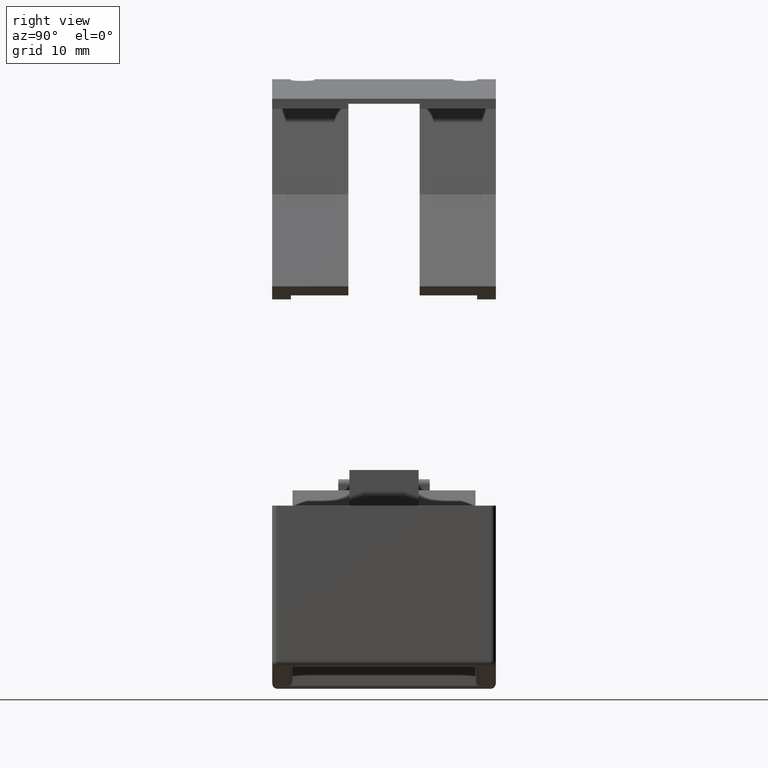
[diagram: clean part render]
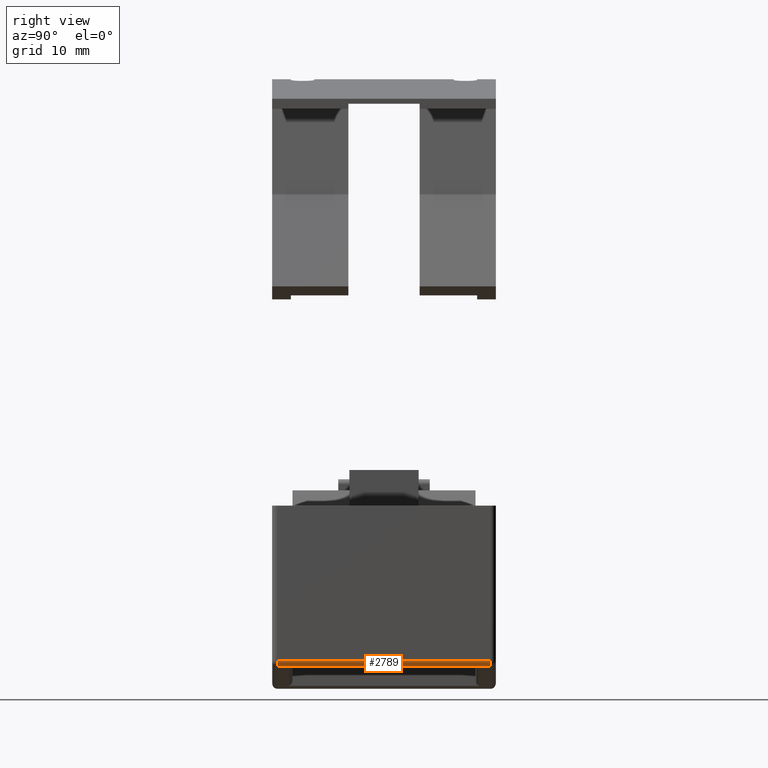
[diagram: same view with one face highlighted and labeled with its STEP entity id]
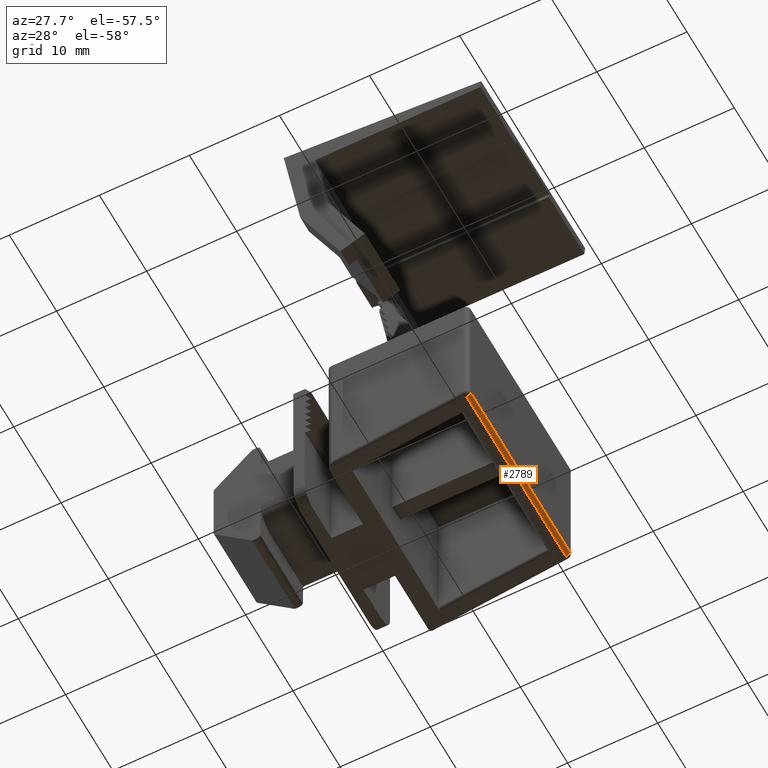
[diagram: same view with one face highlighted and labeled with its STEP entity id]
A machine part, right view. The second image highlights one B-rep face of the part: STEP entity #2789.
A second angle (auxiliary view) of the same face is appended — the face is thin or edge-on in the first view.
In plain terms, the highlighted cylindrical surface (edge-blend (fillet) strip) has radius 0.5 mm, axis along (0, -1, 0).
Its self-contained STEP definition (entity closure, byte-faithful):
#162=FACE_OUTER_BOUND('',#312,.T.);
#312=EDGE_LOOP('',(#1961,#1962,#1963,#1964));
#459=CIRCLE('',#2947,0.5);
#462=CIRCLE('',#2951,0.5);
#505=LINE('',#3926,#878);
#511=LINE('',#3948,#884);
#878=VECTOR('',#3159,21.);
#884=VECTOR('',#3183,21.);
#1254=VERTEX_POINT('',#3922);
#1256=VERTEX_POINT('',#3925);
#1261=VERTEX_POINT('',#3938);
#1262=VERTEX_POINT('',#3942);
#1529=EDGE_CURVE('',#1256,#1254,#505,.T.);
#1536=EDGE_CURVE('',#1261,#1256,#459,.F.);
#1539=EDGE_CURVE('',#1254,#1262,#462,.F.);
#1541=EDGE_CURVE('',#1262,#1261,#511,.T.);
#1961=ORIENTED_EDGE('',*,*,#1536,.T.);
#1962=ORIENTED_EDGE('',*,*,#1529,.T.);
#1963=ORIENTED_EDGE('',*,*,#1539,.T.);
#1964=ORIENTED_EDGE('',*,*,#1541,.T.);
#2764=CYLINDRICAL_SURFACE('',#2953,0.5);
#2789=ADVANCED_FACE('',(#162),#2764,.T.);
#2947=AXIS2_PLACEMENT_3D('',#3939,#3169,#3170);
#2951=AXIS2_PLACEMENT_3D('',#3945,#3177,#3178);
#2953=AXIS2_PLACEMENT_3D('',#3947,#3181,#3182);
#3159=DIRECTION('',(0.,-1.,0.));
#3169=DIRECTION('center_axis',(0.,1.,0.));
#3170=DIRECTION('ref_axis',(1.,0.,0.));
#3177=DIRECTION('center_axis',(0.,-1.,0.));
#3178=DIRECTION('ref_axis',(0.144949666815486,0.,0.989439030001384));
#3181=DIRECTION('center_axis',(0.,1.,0.));
#3182=DIRECTION('ref_axis',(0.756620666786036,0.,0.653854086621973));
#3183=DIRECTION('',(0.,1.,0.));
#3922=CARTESIAN_POINT('',(20.0724748334077,-10.5,17.2626310753606));
#3925=CARTESIAN_POINT('',(20.0724748334077,10.5,17.2626310753606));
#3926=CARTESIAN_POINT('',(20.0724748334077,0.,17.2626310753606));
#3938=CARTESIAN_POINT('',(20.5,10.5,16.76791156036));
#3939=CARTESIAN_POINT('Origin',(20.,10.5,16.76791156036));
#3942=CARTESIAN_POINT('',(20.5,-10.5,16.76791156036));
#3945=CARTESIAN_POINT('Origin',(20.,-10.5,16.76791156036));
#3947=CARTESIAN_POINT('Origin',(20.,0.,16.76791156036));
#3948=CARTESIAN_POINT('',(20.5,0.,16.76791156036));